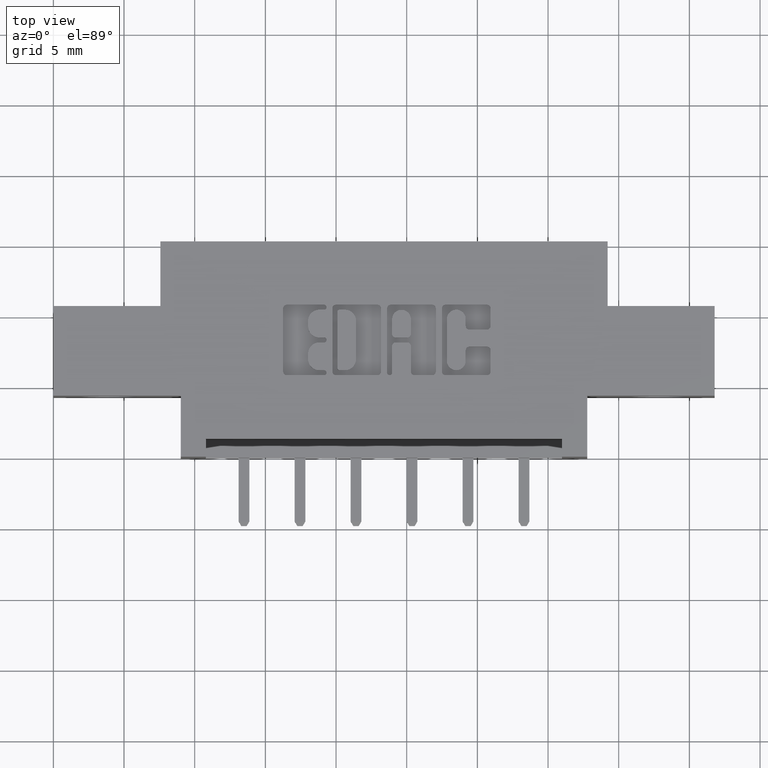
[diagram: clean part render]
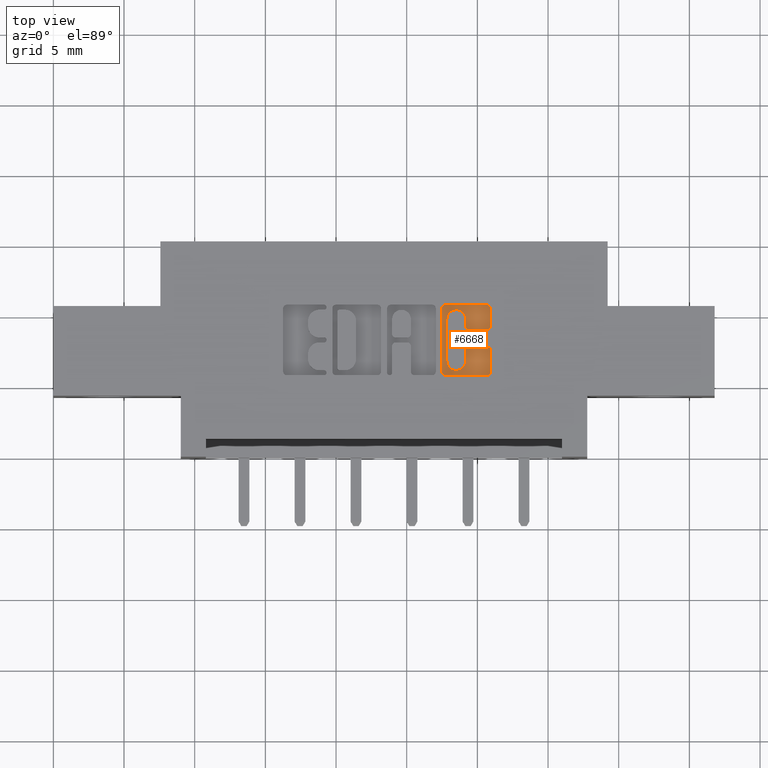
[diagram: same view with one face highlighted and labeled with its STEP entity id]
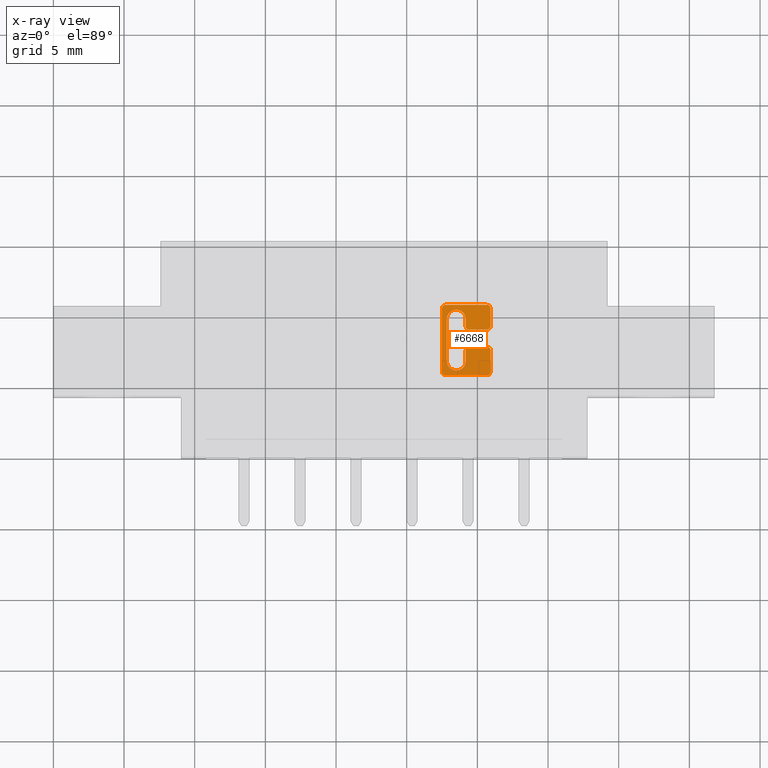
[diagram: x-ray of the same camera — body ghosted, the highlighted face saturated]
A machine part, top view. The second image highlights one B-rep face of the part: STEP entity #6668.
The next image is the same camera in x-ray: the body ghosted, the highlighted face saturated — about 0% of this face is hidden behind the body in this view.
In plain terms, the highlighted planar face has unit normal (0, 0, 1).
Its self-contained STEP definition (entity closure, byte-faithful):
#25 = DIRECTION ( 'NONE',  ( -0.0000000000000000000, 0.0000000000000000000, 1.000000000000000000 ) ) ;
#190 = VERTEX_POINT ( 'NONE', #3823 ) ;
#214 = AXIS2_PLACEMENT_3D ( 'NONE', #9816, #25, #8250 ) ;
#494 = ORIENTED_EDGE ( 'NONE', *, *, #9990, .T. ) ;
#506 = LINE ( 'NONE', #7527, #6040 ) ;
#530 = EDGE_CURVE ( 'NONE', #4959, #5862, #9761, .T. ) ;
#543 = CARTESIAN_POINT ( 'NONE',  ( 1.158293827176967400, 0.2965345564089689700, -0.01000000000000000000 ) ) ;
#550 = CARTESIAN_POINT ( 'NONE',  ( 1.082222383097458900, 0.4133410318342095000, -0.01000000000000000000 ) ) ;
#581 = ORIENTED_EDGE ( 'NONE', *, *, #530, .T. ) ;
#668 = CARTESIAN_POINT ( 'NONE',  ( 1.082222383097458900, 0.2366589681657893500, -0.01000000000000000000 ) ) ;
#713 = CARTESIAN_POINT ( 'NONE',  ( 1.122221239177992400, 0.3831578459575290000, -0.01000000000000000000 ) ) ;
#735 = VECTOR ( 'NONE', #1033, 39.37007874015748100 ) ;
#744 = LINE ( 'NONE', #857, #2480 ) ;
#748 = LINE ( 'NONE', #2706, #735 ) ;
#767 = CARTESIAN_POINT ( 'NONE',  ( 1.092038053301299700, 0.4231567020380504500, -0.01000000000000000000 ) ) ;
#853 = CIRCLE ( 'NONE', #8087, 0.02625691779517367100 ) ;
#857 = CARTESIAN_POINT ( 'NONE',  ( 1.095964321382818700, 0.0000000000000000000, -0.01000000000000000000 ) ) ;
#858 = DIRECTION ( 'NONE',  ( 1.000000000000000000, 0.0000000000000000000, 0.0000000000000000000 ) ) ;
#868 = CARTESIAN_POINT ( 'NONE',  ( 1.207862961706132300, 0.4133410318342103400, -0.01000000000000000000 ) ) ;
#878 = DIRECTION ( 'NONE',  ( 1.000000000000000000, 0.0000000000000000000, 0.0000000000000000000 ) ) ;
#901 = VERTEX_POINT ( 'NONE', #8085 ) ;
#907 = ORIENTED_EDGE ( 'NONE', *, *, #5600, .T. ) ;
#940 = DIRECTION ( 'NONE',  ( -0.0000000000000000000, 0.0000000000000000000, 1.000000000000000000 ) ) ;
#978 = EDGE_CURVE ( 'NONE', #4529, #4556, #744, .T. ) ;
#997 = VERTEX_POINT ( 'NONE', #3414 ) ;
#1033 = DIRECTION ( 'NONE',  ( 0.0000000000000000000, 1.000000000000000000, -0.0000000000000000000 ) ) ;
#1108 = CARTESIAN_POINT ( 'NONE',  ( 1.217678631909940400, 0.2965345564089698100, -0.01000000000000000000 ) ) ;
#1168 = ORIENTED_EDGE ( 'NONE', *, *, #5701, .T. ) ;
#1180 = EDGE_CURVE ( 'NONE', #10028, #901, #2977, .T. ) ;
#1341 = CARTESIAN_POINT ( 'NONE',  ( 1.217678631909940400, 0.2366589681657823900, -0.01000000000000000000 ) ) ;
#1390 = DIRECTION ( 'NONE',  ( -1.000000000000000000, 0.0000000000000000000, 0.0000000000000000000 ) ) ;
#1399 = VERTEX_POINT ( 'NONE', #10489 ) ;
#1422 = VECTOR ( 'NONE', #1390, 39.37007874015748100 ) ;
#1476 = VERTEX_POINT ( 'NONE', #550 ) ;
#1503 = VERTEX_POINT ( 'NONE', #2359 ) ;
#1529 = DIRECTION ( 'NONE',  ( 1.000000000000000000, 0.0000000000000000000, 0.0000000000000000000 ) ) ;
#1531 = DIRECTION ( 'NONE',  ( 1.000000000000000000, 0.0000000000000000000, 0.0000000000000000000 ) ) ;
#1532 = DIRECTION ( 'NONE',  ( -0.0000000000000000000, 0.0000000000000000000, 1.000000000000000000 ) ) ;
#1553 = AXIS2_PLACEMENT_3D ( 'NONE', #9475, #1603, #878 ) ;
#1603 = DIRECTION ( 'NONE',  ( -0.0000000000000000000, 0.0000000000000000000, 1.000000000000000000 ) ) ;
#1646 = EDGE_CURVE ( 'NONE', #1399, #190, #3735, .T. ) ;
#1658 = CARTESIAN_POINT ( 'NONE',  ( 1.207862961706167400, 0.3637718973050380600, -0.01000000000000000000 ) ) ;
#1673 = DIRECTION ( 'NONE',  ( -1.000000000000000000, 0.0000000000000000000, 0.0000000000000000000 ) ) ;
#1687 = VECTOR ( 'NONE', #2793, 39.37007874015748100 ) ;
#1719 = LINE ( 'NONE', #3170, #3789 ) ;
#1892 = DIRECTION ( 'NONE',  ( -0.0000000000000000000, 0.0000000000000000000, 1.000000000000000000 ) ) ;
#1981 = ORIENTED_EDGE ( 'NONE', *, *, #7498, .T. ) ;
#2040 = VERTEX_POINT ( 'NONE', #5101 ) ;
#2054 = CARTESIAN_POINT ( 'NONE',  ( 1.148478156973179200, 0.2965345564089680900, -0.01000000000000000000 ) ) ;
#2179 = DIRECTION ( 'NONE',  ( -0.0000000000000000000, 0.0000000000000000000, 1.000000000000000000 ) ) ;
#2359 = CARTESIAN_POINT ( 'NONE',  ( 1.148478156973166100, 0.3637718973050446100, -0.01000000000000000000 ) ) ;
#2453 = DIRECTION ( 'NONE',  ( 1.000000000000000000, 0.0000000000000000000, 0.0000000000000000000 ) ) ;
#2480 = VECTOR ( 'NONE', #9185, 39.37007874015748100 ) ;
#2665 = VERTEX_POINT ( 'NONE', #2054 ) ;
#2706 = CARTESIAN_POINT ( 'NONE',  ( 1.217678631909940400, 0.0000000000000000000, -0.01000000000000000000 ) ) ;
#2720 = LINE ( 'NONE', #9353, #1687 ) ;
#2788 = EDGE_CURVE ( 'NONE', #5577, #997, #3325, .T. ) ;
#2793 = DIRECTION ( 'NONE',  ( 1.000000000000000000, 0.0000000000000000000, 0.0000000000000000000 ) ) ;
#2831 = CIRCLE ( 'NONE', #5929, 0.009815670203806345400 ) ;
#2937 = CARTESIAN_POINT ( 'NONE',  ( 1.207862961706134500, 0.2268432979619826000, -0.01000000000000000000 ) ) ;
#2977 = LINE ( 'NONE', #3859, #5274 ) ;
#3000 = DIRECTION ( 'NONE',  ( 1.000000000000000000, 0.0000000000000000000, 0.0000000000000000000 ) ) ;
#3065 = CARTESIAN_POINT ( 'NONE',  ( 1.092038053301265700, 0.2366589681657893500, -0.01000000000000000000 ) ) ;
#3164 = EDGE_CURVE ( 'NONE', #1503, #10028, #6357, .T. ) ;
#3170 = CARTESIAN_POINT ( 'NONE',  ( 1.082222383097458900, 0.0000000000000000000, -0.01000000000000000000 ) ) ;
#3243 = CARTESIAN_POINT ( 'NONE',  ( 1.148478156973179200, 0.0000000000000000000, -0.01000000000000000000 ) ) ;
#3318 = CARTESIAN_POINT ( 'NONE',  ( 1.148478156973179200, 0.2668421540424524300, -0.01000000000000000000 ) ) ;
#3325 = CIRCLE ( 'NONE', #8049, 0.009815670203806754800 ) ;
#3344 = ORIENTED_EDGE ( 'NONE', *, *, #9737, .F. ) ;
#3414 = CARTESIAN_POINT ( 'NONE',  ( 1.092038053301265700, 0.2268432979619826000, -0.01000000000000000000 ) ) ;
#3707 = EDGE_CURVE ( 'NONE', #7859, #2665, #6720, .T. ) ;
#3708 = DIRECTION ( 'NONE',  ( 1.000000000000000000, 0.0000000000000000000, 0.0000000000000000000 ) ) ;
#3735 = CIRCLE ( 'NONE', #9920, 0.009815670203840084000 ) ;
#3789 = VECTOR ( 'NONE', #8076, 39.37007874015748100 ) ;
#3820 = ORIENTED_EDGE ( 'NONE', *, *, #1646, .T. ) ;
#3823 = CARTESIAN_POINT ( 'NONE',  ( 1.207862961706168700, 0.4231567020380504500, -0.01000000000000000000 ) ) ;
#3859 = CARTESIAN_POINT ( 'NONE',  ( 0.0000000000000000000, 0.3539562271012330300, -0.01000000000000000000 ) ) ;
#3902 = LINE ( 'NONE', #3243, #7314 ) ;
#3933 = DIRECTION ( 'NONE',  ( 0.0000000000000000000, 1.000000000000000000, -0.0000000000000000000 ) ) ;
#3939 = DIRECTION ( 'NONE',  ( -0.0000000000000000000, 0.0000000000000000000, 1.000000000000000000 ) ) ;
#4036 = VECTOR ( 'NONE', #3933, 39.37007874015748100 ) ;
#4067 = ORIENTED_EDGE ( 'NONE', *, *, #978, .T. ) ;
#4153 = PLANE ( 'NONE',  #214 ) ;
#4398 = CIRCLE ( 'NONE', #1553, 0.02625691779518022500 ) ;
#4454 = VERTEX_POINT ( 'NONE', #4573 ) ;
#4492 = ORIENTED_EDGE ( 'NONE', *, *, #9704, .T. ) ;
#4529 = VERTEX_POINT ( 'NONE', #7315 ) ;
#4551 = ORIENTED_EDGE ( 'NONE', *, *, #6798, .T. ) ;
#4556 = VERTEX_POINT ( 'NONE', #9764 ) ;
#4573 = CARTESIAN_POINT ( 'NONE',  ( 1.217678631909972400, 0.3637718973050380600, -0.01000000000000000000 ) ) ;
#4752 = VECTOR ( 'NONE', #1673, 39.37007874015748100 ) ;
#4915 = LINE ( 'NONE', #9700, #4036 ) ;
#4959 = VERTEX_POINT ( 'NONE', #1108 ) ;
#4992 = ORIENTED_EDGE ( 'NONE', *, *, #9206, .T. ) ;
#5000 = ORIENTED_EDGE ( 'NONE', *, *, #1180, .T. ) ;
#5101 = CARTESIAN_POINT ( 'NONE',  ( 1.148478156973166100, 0.3831578454992593000, -0.01000000000000000000 ) ) ;
#5147 = CARTESIAN_POINT ( 'NONE',  ( 1.092038053301299700, 0.4133410318342095000, -0.01000000000000000000 ) ) ;
#5240 = ORIENTED_EDGE ( 'NONE', *, *, #8171, .F. ) ;
#5274 = VECTOR ( 'NONE', #10469, 39.37007874015748100 ) ;
#5315 = ORIENTED_EDGE ( 'NONE', *, *, #7340, .T. ) ;
#5577 = VERTEX_POINT ( 'NONE', #668 ) ;
#5600 = EDGE_CURVE ( 'NONE', #4454, #1399, #4915, .T. ) ;
#5696 = DIRECTION ( 'NONE',  ( -0.0000000000000000000, 0.0000000000000000000, 1.000000000000000000 ) ) ;
#5701 = EDGE_CURVE ( 'NONE', #901, #4454, #8330, .T. ) ;
#5732 = EDGE_CURVE ( 'NONE', #2665, #6707, #3902, .T. ) ;
#5777 = EDGE_CURVE ( 'NONE', #2040, #1503, #506, .T. ) ;
#5807 = DIRECTION ( 'NONE',  ( 0.0000000000000000000, -1.000000000000000000, 0.0000000000000000000 ) ) ;
#5862 = VERTEX_POINT ( 'NONE', #5938 ) ;
#5929 = AXIS2_PLACEMENT_3D ( 'NONE', #9760, #1532, #2453 ) ;
#5938 = CARTESIAN_POINT ( 'NONE',  ( 1.207862961706156900, 0.3063502266127569600, -0.01000000000000000000 ) ) ;
#6040 = VECTOR ( 'NONE', #6774, 39.37007874015748100 ) ;
#6111 = CARTESIAN_POINT ( 'NONE',  ( 1.207862961706153400, 0.2965345564089698100, -0.01000000000000000000 ) ) ;
#6128 = DIRECTION ( 'NONE',  ( 1.000000000000000000, 0.0000000000000000000, 0.0000000000000000000 ) ) ;
#6226 = DIRECTION ( 'NONE',  ( -0.0000000000000000000, 0.0000000000000000000, 1.000000000000000000 ) ) ;
#6357 = CIRCLE ( 'NONE', #8402, 0.009815670203811535700 ) ;
#6394 = LINE ( 'NONE', #6553, #4752 ) ;
#6428 = AXIS2_PLACEMENT_3D ( 'NONE', #543, #3939, #8748 ) ;
#6553 = CARTESIAN_POINT ( 'NONE',  ( 0.0000000000000000000, 0.3063502266127569600, -0.01000000000000000000 ) ) ;
#6668 = ADVANCED_FACE ( 'NONE', ( #7555 ), #4153, .T. ) ;
#6707 = VERTEX_POINT ( 'NONE', #3318 ) ;
#6720 = CIRCLE ( 'NONE', #6428, 0.009815670203788042300 ) ;
#6774 = DIRECTION ( 'NONE',  ( 0.0000000000000000000, -1.000000000000000000, 0.0000000000000000000 ) ) ;
#6798 = EDGE_CURVE ( 'NONE', #8310, #4959, #748, .T. ) ;
#6837 = EDGE_LOOP ( 'NONE', ( #5000, #1168, #907, #3820, #494, #4492, #4992, #6943, #1981, #10168, #4551, #581, #5315, #7486, #10319, #3344, #4067, #5240, #9070, #9687 ) ) ;
#6884 = DIRECTION ( 'NONE',  ( -0.0000000000000000000, 0.0000000000000000000, 1.000000000000000000 ) ) ;
#6943 = ORIENTED_EDGE ( 'NONE', *, *, #2788, .T. ) ;
#7119 = CARTESIAN_POINT ( 'NONE',  ( 1.158293827176967400, 0.3063502266127569600, -0.01000000000000000000 ) ) ;
#7314 = VECTOR ( 'NONE', #5807, 39.37007874015748100 ) ;
#7315 = CARTESIAN_POINT ( 'NONE',  ( 1.095964321382818700, 0.2668421540424524300, -0.01000000000000000000 ) ) ;
#7327 = CARTESIAN_POINT ( 'NONE',  ( 1.158293827176977600, 0.3539562271012330300, -0.01000000000000000000 ) ) ;
#7340 = EDGE_CURVE ( 'NONE', #5862, #7859, #6394, .T. ) ;
#7486 = ORIENTED_EDGE ( 'NONE', *, *, #3707, .T. ) ;
#7498 = EDGE_CURVE ( 'NONE', #997, #8741, #2720, .T. ) ;
#7527 = CARTESIAN_POINT ( 'NONE',  ( 1.148478156973166100, 0.0000000000000000000, -0.01000000000000000000 ) ) ;
#7555 = FACE_OUTER_BOUND ( 'NONE', #6837, .T. ) ;
#7859 = VERTEX_POINT ( 'NONE', #7119 ) ;
#8026 = CARTESIAN_POINT ( 'NONE',  ( 0.0000000000000000000, 0.4231567020380504500, -0.01000000000000000000 ) ) ;
#8049 = AXIS2_PLACEMENT_3D ( 'NONE', #3065, #8732, #1529 ) ;
#8076 = DIRECTION ( 'NONE',  ( 0.0000000000000000000, -1.000000000000000000, 0.0000000000000000000 ) ) ;
#8085 = CARTESIAN_POINT ( 'NONE',  ( 1.207862961706167400, 0.3539562271012330300, -0.01000000000000000000 ) ) ;
#8087 = AXIS2_PLACEMENT_3D ( 'NONE', #713, #6884, #3708 ) ;
#8171 = EDGE_CURVE ( 'NONE', #2040, #4556, #853, .T. ) ;
#8250 = DIRECTION ( 'NONE',  ( 1.000000000000000000, 0.0000000000000000000, 0.0000000000000000000 ) ) ;
#8310 = VERTEX_POINT ( 'NONE', #1341 ) ;
#8330 = CIRCLE ( 'NONE', #8629, 0.009815670203804980100 ) ;
#8359 = EDGE_CURVE ( 'NONE', #8741, #8310, #2831, .T. ) ;
#8402 = AXIS2_PLACEMENT_3D ( 'NONE', #9491, #2179, #3000 ) ;
#8579 = LINE ( 'NONE', #8026, #1422 ) ;
#8629 = AXIS2_PLACEMENT_3D ( 'NONE', #1658, #5696, #858 ) ;
#8732 = DIRECTION ( 'NONE',  ( -0.0000000000000000000, 0.0000000000000000000, 1.000000000000000000 ) ) ;
#8741 = VERTEX_POINT ( 'NONE', #2937 ) ;
#8748 = DIRECTION ( 'NONE',  ( 1.000000000000000000, 0.0000000000000000000, 0.0000000000000000000 ) ) ;
#9019 = DIRECTION ( 'NONE',  ( 1.000000000000000000, 0.0000000000000000000, 0.0000000000000000000 ) ) ;
#9070 = ORIENTED_EDGE ( 'NONE', *, *, #5777, .T. ) ;
#9185 = DIRECTION ( 'NONE',  ( 0.0000000000000000000, 1.000000000000000000, -0.0000000000000000000 ) ) ;
#9206 = EDGE_CURVE ( 'NONE', #1476, #5577, #1719, .T. ) ;
#9247 = CIRCLE ( 'NONE', #10314, 0.009815670203840767500 ) ;
#9353 = CARTESIAN_POINT ( 'NONE',  ( 0.0000000000000000000, 0.2268432979619826000, -0.01000000000000000000 ) ) ;
#9475 = CARTESIAN_POINT ( 'NONE',  ( 1.122221239177999100, 0.2668421540424524300, -0.01000000000000000000 ) ) ;
#9491 = CARTESIAN_POINT ( 'NONE',  ( 1.158293827176977600, 0.3637718973050446100, -0.01000000000000000000 ) ) ;
#9687 = ORIENTED_EDGE ( 'NONE', *, *, #3164, .T. ) ;
#9700 = CARTESIAN_POINT ( 'NONE',  ( 1.217678631909972400, 0.0000000000000000000, -0.01000000000000000000 ) ) ;
#9704 = EDGE_CURVE ( 'NONE', #10463, #1476, #9247, .T. ) ;
#9737 = EDGE_CURVE ( 'NONE', #4529, #6707, #4398, .T. ) ;
#9760 = CARTESIAN_POINT ( 'NONE',  ( 1.207862961706134500, 0.2366589681657893500, -0.01000000000000000000 ) ) ;
#9761 = CIRCLE ( 'NONE', #10053, 0.009815670203787086500 ) ;
#9764 = CARTESIAN_POINT ( 'NONE',  ( 1.095964321382818700, 0.3831578459575290000, -0.01000000000000000000 ) ) ;
#9816 = CARTESIAN_POINT ( 'NONE',  ( 0.0000000000000000000, 0.0000000000000000000, -0.01000000000000000000 ) ) ;
#9920 = AXIS2_PLACEMENT_3D ( 'NONE', #868, #940, #9019 ) ;
#9990 = EDGE_CURVE ( 'NONE', #190, #10463, #8579, .T. ) ;
#10028 = VERTEX_POINT ( 'NONE', #7327 ) ;
#10053 = AXIS2_PLACEMENT_3D ( 'NONE', #6111, #6226, #1531 ) ;
#10168 = ORIENTED_EDGE ( 'NONE', *, *, #8359, .T. ) ;
#10314 = AXIS2_PLACEMENT_3D ( 'NONE', #5147, #1892, #6128 ) ;
#10319 = ORIENTED_EDGE ( 'NONE', *, *, #5732, .T. ) ;
#10463 = VERTEX_POINT ( 'NONE', #767 ) ;
#10469 = DIRECTION ( 'NONE',  ( 1.000000000000000000, 0.0000000000000000000, 0.0000000000000000000 ) ) ;
#10489 = CARTESIAN_POINT ( 'NONE',  ( 1.217678631909972400, 0.4133410318341942400, -0.01000000000000000000 ) ) ;